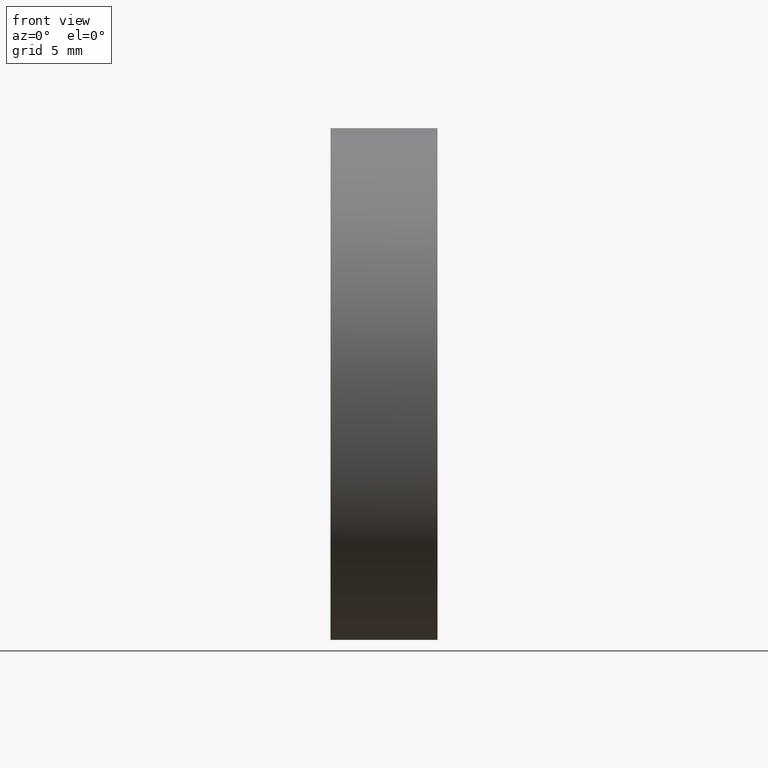
[diagram: clean part render]
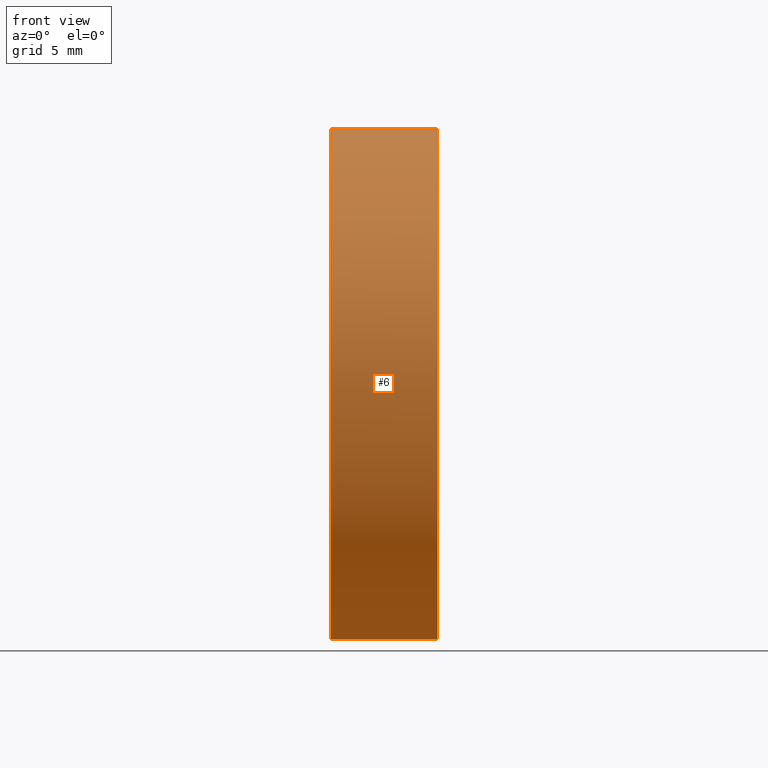
[diagram: same view with one face highlighted and labeled with its STEP entity id]
A machine part, front view. The second image highlights one B-rep face of the part: STEP entity #6.
In plain terms, the highlighted cylindrical surface (partial cylindrical patch) has radius 12.5 mm, axis along (-1, -0, -0).
Its self-contained STEP definition (entity closure, byte-faithful):
#1 = CARTESIAN_POINT ( 'NONE',  ( 57.53233705252611700, 32.61076812922678400, 0.0000000000000000000 ) ) ;
#5 = ORIENTED_EDGE ( 'NONE', *, *, #10, .T. ) ;
#6 = ADVANCED_FACE ( 'NONE', ( #152 ), #43, .T. ) ;
#10 = EDGE_CURVE ( 'NONE', #20, #60, #74, .T. ) ;
#13 = DIRECTION ( 'NONE',  ( 0.0000000000000000000, 0.0000000000000000000, 1.000000000000000000 ) ) ;
#19 = EDGE_CURVE ( 'NONE', #60, #164, #88, .T. ) ;
#20 = VERTEX_POINT ( 'NONE', #182 ) ;
#23 = ORIENTED_EDGE ( 'NONE', *, *, #89, .F. ) ;
#26 = ORIENTED_EDGE ( 'NONE', *, *, #19, .T. ) ;
#29 = CARTESIAN_POINT ( 'NONE',  ( 57.53233705252611700, 32.61076812922678400, 12.49999999999999600 ) ) ;
#31 = DIRECTION ( 'NONE',  ( -1.000000000000000000, -0.0000000000000000000, -0.0000000000000000000 ) ) ;
#37 = DIRECTION ( 'NONE',  ( -1.000000000000000000, -0.0000000000000000000, -0.0000000000000000000 ) ) ;
#43 = CYLINDRICAL_SURFACE ( 'NONE', #158, 12.49999999999999600 ) ;
#44 = ORIENTED_EDGE ( 'NONE', *, *, #79, .F. ) ;
#46 = EDGE_LOOP ( 'NONE', ( #23, #96, #5, #26, #44 ) ) ;
#47 = DIRECTION ( 'NONE',  ( 0.0000000000000000000, 0.0000000000000000000, 1.000000000000000000 ) ) ;
#50 = CARTESIAN_POINT ( 'NONE',  ( 62.75695290809913000, 32.61076812922678400, -12.49999999999999600 ) ) ;
#51 = CARTESIAN_POINT ( 'NONE',  ( 62.75695290809913000, 32.61076812922678400, 12.49999999999999600 ) ) ;
#54 = DIRECTION ( 'NONE',  ( 0.0000000000000000000, 0.0000000000000000000, 1.000000000000000000 ) ) ;
#55 = VERTEX_POINT ( 'NONE', #117 ) ;
#60 = VERTEX_POINT ( 'NONE', #51 ) ;
#62 = DIRECTION ( 'NONE',  ( -1.000000000000000000, -0.0000000000000000000, -0.0000000000000000000 ) ) ;
#69 = CIRCLE ( 'NONE', #103, 12.49999999999999600 ) ;
#74 = CIRCLE ( 'NONE', #146, 12.49999999999999600 ) ;
#76 = AXIS2_PLACEMENT_3D ( 'NONE', #1, #83, #102 ) ;
#79 = EDGE_CURVE ( 'NONE', #55, #164, #104, .T. ) ;
#83 = DIRECTION ( 'NONE',  ( -1.000000000000000000, -0.0000000000000000000, -0.0000000000000000000 ) ) ;
#87 = CARTESIAN_POINT ( 'NONE',  ( 62.75695290809913000, 32.61076812922678400, 0.0000000000000000000 ) ) ;
#88 = LINE ( 'NONE', #174, #153 ) ;
#89 = EDGE_CURVE ( 'NONE', #108, #55, #179, .T. ) ;
#96 = ORIENTED_EDGE ( 'NONE', *, *, #132, .T. ) ;
#98 = CARTESIAN_POINT ( 'NONE',  ( 56.10091507999716500, 32.61076812922678400, 0.0000000000000000000 ) ) ;
#102 = DIRECTION ( 'NONE',  ( 0.0000000000000000000, 0.0000000000000000000, 1.000000000000000000 ) ) ;
#103 = AXIS2_PLACEMENT_3D ( 'NONE', #87, #31, #54 ) ;
#104 = CIRCLE ( 'NONE', #76, 12.49999999999999600 ) ;
#108 = VERTEX_POINT ( 'NONE', #50 ) ;
#117 = CARTESIAN_POINT ( 'NONE',  ( 57.53233705252611700, 32.61076812922678400, -12.49999999999999600 ) ) ;
#132 = EDGE_CURVE ( 'NONE', #108, #20, #69, .T. ) ;
#146 = AXIS2_PLACEMENT_3D ( 'NONE', #156, #184, #13 ) ;
#147 = CARTESIAN_POINT ( 'NONE',  ( 56.10091507999716500, 32.61076812922678400, -12.49999999999999600 ) ) ;
#152 = FACE_OUTER_BOUND ( 'NONE', #46, .T. ) ;
#153 = VECTOR ( 'NONE', #37, 1000.000000000000000 ) ;
#154 = VECTOR ( 'NONE', #159, 1000.000000000000000 ) ;
#156 = CARTESIAN_POINT ( 'NONE',  ( 62.75695290809913000, 32.61076812922678400, 0.0000000000000000000 ) ) ;
#158 = AXIS2_PLACEMENT_3D ( 'NONE', #98, #62, #47 ) ;
#159 = DIRECTION ( 'NONE',  ( -1.000000000000000000, -0.0000000000000000000, -0.0000000000000000000 ) ) ;
#164 = VERTEX_POINT ( 'NONE', #29 ) ;
#174 = CARTESIAN_POINT ( 'NONE',  ( 56.10091507999716500, 32.61076812922678400, 12.49999999999999600 ) ) ;
#179 = LINE ( 'NONE', #147, #154 ) ;
#182 = CARTESIAN_POINT ( 'NONE',  ( 62.75695290809913000, 20.11076812922679100, 0.0000000000000000000 ) ) ;
#184 = DIRECTION ( 'NONE',  ( -1.000000000000000000, -0.0000000000000000000, -0.0000000000000000000 ) ) ;